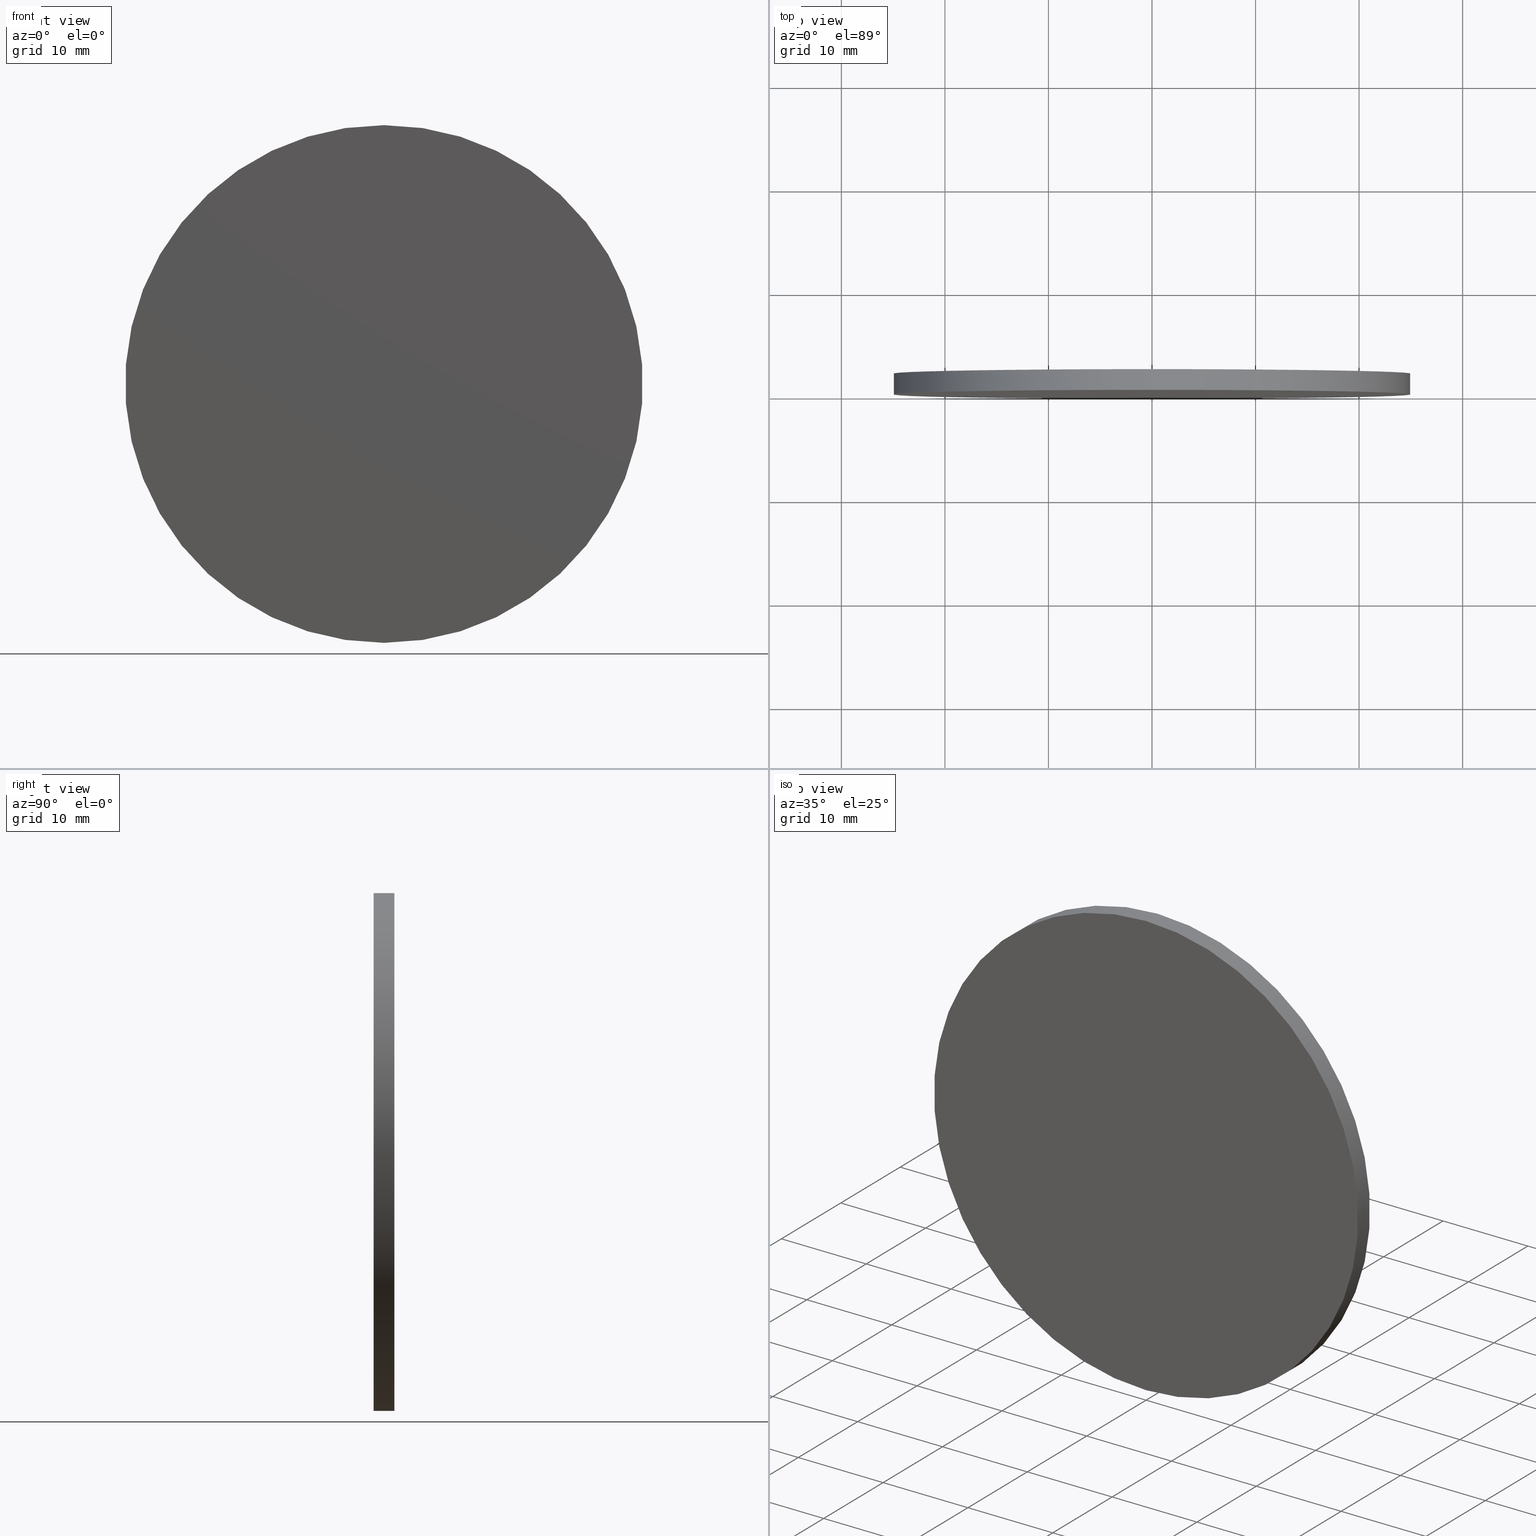
[diagram: canonical four-view strip — front | top / right | iso, engineering-drawing reading convention]
A machine part, canonical four-view strip (front | top / right | iso — engineering-drawing reading convention). The complete STEP part file that produces these views, byte-faithful:
ISO-10303-21;
HEADER;
FILE_DESCRIPTION (( 'STEP AP214' ),
    '1' );
FILE_NAME ('218617.STEP',
    '2019-07-30T05:51:13',
    ( 'user' ),
    ( '΢���й�' ),
    'SwSTEP 2.0',
    'SolidWorks 2016',
    '' );
FILE_SCHEMA (( 'AUTOMOTIVE_DESIGN' ));
ENDSEC;

DATA;
#1 = UNCERTAINTY_MEASURE_WITH_UNIT (LENGTH_MEASURE( 1.000000000000000100E-005 ), #70, 'distance_accuracy_value', 'NONE');
#2 = ORIENTED_EDGE ( 'NONE', *, *, #3, .F. ) ;
#3 = EDGE_CURVE ( 'NONE', #18, #49, #54, .T. ) ;
#4 = FILL_AREA_STYLE_COLOUR ( '', #72 ) ;
#5 = LINE ( 'NONE', #45, #126 ) ;
#6 =( NAMED_UNIT ( * ) PLANE_ANGLE_UNIT ( ) SI_UNIT ( $, .RADIAN. ) );
#7 = ORIENTED_EDGE ( 'NONE', *, *, #16, .T. ) ;
#8 = CARTESIAN_POINT ( 'NONE',  ( 0.0000000000000000000, 0.0000000000000000000, 0.0000000000000000000 ) ) ;
#9 = CARTESIAN_POINT ( 'NONE',  ( 0.0000000000000000000, 2.000000000000000000, -25.00000000000000000 ) ) ;
#10 = PLANE ( 'NONE',  #50 ) ;
#11 = MANIFOLD_SOLID_BREP ( '͹̨-����1', #112 ) ;
#12 = STYLED_ITEM ( 'NONE', ( #61 ), #39 ) ;
#13 = EDGE_LOOP ( 'NONE', ( #2, #21 ) ) ;
#14 = PRODUCT ( '218617', '218617', '', ( #121 ) ) ;
#15 =( NAMED_UNIT ( * ) SI_UNIT ( $, .STERADIAN. ) SOLID_ANGLE_UNIT ( ) );
#16 = EDGE_CURVE ( 'NONE', #60, #134, #116, .T. ) ;
#17 = CARTESIAN_POINT ( 'NONE',  ( 0.0000000000000000000, 2.000000000000000000, 0.0000000000000000000 ) ) ;
#18 = VERTEX_POINT ( 'NONE', #25 ) ;
#19 = CARTESIAN_POINT ( 'NONE',  ( 0.0000000000000000000, 2.000000000000000000, -25.00000000000000000 ) ) ;
#20 =( NAMED_UNIT ( * ) SI_UNIT ( $, .STERADIAN. ) SOLID_ANGLE_UNIT ( ) );
#21 = ORIENTED_EDGE ( 'NONE', *, *, #133, .F. ) ;
#22 =( GEOMETRIC_REPRESENTATION_CONTEXT ( 3 ) GLOBAL_UNCERTAINTY_ASSIGNED_CONTEXT ( ( #125 ) ) GLOBAL_UNIT_ASSIGNED_CONTEXT ( ( #69, #83, #15 ) ) REPRESENTATION_CONTEXT ( 'NONE', 'WORKASPACE' ) );
#23 = ORIENTED_EDGE ( 'NONE', *, *, #93, .F. ) ;
#24 = EDGE_CURVE ( 'NONE', #134, #18, #75, .T. ) ;
#25 = CARTESIAN_POINT ( 'NONE',  ( 0.0000000000000000000, 0.0000000000000000000, -25.00000000000000000 ) ) ;
#26 = AXIS2_PLACEMENT_3D ( 'NONE', #71, #55, #97 ) ;
#27 = SURFACE_STYLE_USAGE ( .BOTH. , #96 ) ;
#28 = DIRECTION ( 'NONE',  ( 0.0000000000000000000, 1.000000000000000000, 0.0000000000000000000 ) ) ;
#29 = DIRECTION ( 'NONE',  ( 0.0000000000000000000, 1.000000000000000000, 0.0000000000000000000 ) ) ;
#30 = SURFACE_STYLE_USAGE ( .BOTH. , #41 ) ;
#31 = EDGE_LOOP ( 'NONE', ( #23, #77, #33, #115 ) ) ;
#32 = FILL_AREA_STYLE ('',( #4 ) ) ;
#33 = ORIENTED_EDGE ( 'NONE', *, *, #24, .T. ) ;
#34 = FILL_AREA_STYLE ('',( #86 ) ) ;
#35 = CARTESIAN_POINT ( 'NONE',  ( 3.061616997868383000E-015, 2.000000000000000000, 25.00000000000000000 ) ) ;
#36 = CARTESIAN_POINT ( 'NONE',  ( 0.0000000000000000000, 2.000000000000000000, 0.0000000000000000000 ) ) ;
#37 = SURFACE_STYLE_FILL_AREA ( #34 ) ;
#38 = ADVANCED_FACE ( 'NONE', ( #137 ), #66, .T. ) ;
#39 = ADVANCED_BREP_SHAPE_REPRESENTATION ( '218617', ( #11, #85 ), #114 ) ;
#40 = PRODUCT_DEFINITION_SHAPE ( 'NONE', 'NONE',  #101 ) ;
#41 = SURFACE_SIDE_STYLE ('',( #67 ) ) ;
#42 = APPLICATION_CONTEXT ( 'automotive_design' ) ;
#43 = AXIS2_PLACEMENT_3D ( 'NONE', #17, #98, #47 ) ;
#44 = CIRCLE ( 'NONE', #120, 25.00000000000000000 ) ;
#45 = CARTESIAN_POINT ( 'NONE',  ( 3.061616997868383000E-015, 2.000000000000000000, 25.00000000000000000 ) ) ;
#46 = PRESENTATION_STYLE_ASSIGNMENT (( #30 ) ) ;
#47 = DIRECTION ( 'NONE',  ( 0.0000000000000000000, 0.0000000000000000000, -1.000000000000000000 ) ) ;
#48 = UNCERTAINTY_MEASURE_WITH_UNIT (LENGTH_MEASURE( 1.000000000000000100E-005 ), #94, 'distance_accuracy_value', 'NONE');
#49 = VERTEX_POINT ( 'NONE', #80 ) ;
#50 = AXIS2_PLACEMENT_3D ( 'NONE', #111, #28, #88 ) ;
#51 = ORIENTED_EDGE ( 'NONE', *, *, #93, .T. ) ;
#52 = ORIENTED_EDGE ( 'NONE', *, *, #127, .T. ) ;
#53 = DIRECTION ( 'NONE',  ( 0.0000000000000000000, 0.0000000000000000000, 1.000000000000000000 ) ) ;
#54 = CIRCLE ( 'NONE', #64, 25.00000000000000000 ) ;
#55 = DIRECTION ( 'NONE',  ( -0.0000000000000000000, -1.000000000000000000, -0.0000000000000000000 ) ) ;
#56 = FACE_OUTER_BOUND ( 'NONE', #13, .T. ) ;
#57 = DIRECTION ( 'NONE',  ( 0.0000000000000000000, -0.0000000000000000000, 1.000000000000000000 ) ) ;
#58 = CARTESIAN_POINT ( 'NONE',  ( 0.0000000000000000000, 2.000000000000000000, 0.0000000000000000000 ) ) ;
#59 = AXIS2_PLACEMENT_3D ( 'NONE', #36, #29, #90 ) ;
#60 = VERTEX_POINT ( 'NONE', #35 ) ;
#61 = PRESENTATION_STYLE_ASSIGNMENT (( #27 ) ) ;
#62 = CARTESIAN_POINT ( 'NONE',  ( 0.0000000000000000000, 2.000000000000000000, 0.0000000000000000000 ) ) ;
#63 = DIRECTION ( 'NONE',  ( 0.0000000000000000000, 0.0000000000000000000, 1.000000000000000000 ) ) ;
#64 = AXIS2_PLACEMENT_3D ( 'NONE', #81, #99, #92 ) ;
#65 = DIRECTION ( 'NONE',  ( 0.0000000000000000000, 1.000000000000000000, 0.0000000000000000000 ) ) ;
#66 = PLANE ( 'NONE',  #128 ) ;
#67 = SURFACE_STYLE_FILL_AREA ( #32 ) ;
#68 = PRODUCT_RELATED_PRODUCT_CATEGORY ( 'part', '', ( #14 ) ) ;
#69 =( LENGTH_UNIT ( ) NAMED_UNIT ( * ) SI_UNIT ( .MILLI., .METRE. ) );
#70 =( LENGTH_UNIT ( ) NAMED_UNIT ( * ) SI_UNIT ( .MILLI., .METRE. ) );
#71 = CARTESIAN_POINT ( 'NONE',  ( 0.0000000000000000000, 2.000000000000000000, 0.0000000000000000000 ) ) ;
#72 = COLOUR_RGB ( '',1.000000000000000000, 1.000000000000000000, 1.000000000000000000 ) ;
#73 = FACE_OUTER_BOUND ( 'NONE', #31, .T. ) ;
#74 = DIRECTION ( 'NONE',  ( -0.0000000000000000000, -1.000000000000000000, -0.0000000000000000000 ) ) ;
#75 = LINE ( 'NONE', #19, #129 ) ;
#76 =( GEOMETRIC_REPRESENTATION_CONTEXT ( 3 ) GLOBAL_UNCERTAINTY_ASSIGNED_CONTEXT ( ( #48 ) ) GLOBAL_UNIT_ASSIGNED_CONTEXT ( ( #94, #91, #20 ) ) REPRESENTATION_CONTEXT ( 'NONE', 'WORKASPACE' ) );
#77 = ORIENTED_EDGE ( 'NONE', *, *, #127, .F. ) ;
#78 = ADVANCED_FACE ( 'NONE', ( #56 ), #10, .F. ) ;
#79 = PRODUCT_DEFINITION_FORMATION_WITH_SPECIFIED_SOURCE ( '�κ�', '', #14, .NOT_KNOWN. ) ;
#80 = CARTESIAN_POINT ( 'NONE',  ( 3.061616997868383000E-015, 0.0000000000000000000, 25.00000000000000000 ) ) ;
#81 = CARTESIAN_POINT ( 'NONE',  ( 0.0000000000000000000, 0.0000000000000000000, 0.0000000000000000000 ) ) ;
#82 = DIRECTION ( 'NONE',  ( 0.0000000000000000000, 1.000000000000000000, 0.0000000000000000000 ) ) ;
#83 =( NAMED_UNIT ( * ) PLANE_ANGLE_UNIT ( ) SI_UNIT ( $, .RADIAN. ) );
#84 = MECHANICAL_DESIGN_GEOMETRIC_PRESENTATION_REPRESENTATION (  '', ( #109 ), #76 ) ;
#85 = AXIS2_PLACEMENT_3D ( 'NONE', #124, #63, #130 ) ;
#86 = FILL_AREA_STYLE_COLOUR ( '', #118 ) ;
#87 = CYLINDRICAL_SURFACE ( 'NONE', #26, 25.00000000000000000 ) ;
#88 = DIRECTION ( 'NONE',  ( 0.0000000000000000000, -0.0000000000000000000, 1.000000000000000000 ) ) ;
#89 = ADVANCED_FACE ( 'NONE', ( #73 ), #106, .T. ) ;
#90 = DIRECTION ( 'NONE',  ( 0.0000000000000000000, 0.0000000000000000000, 1.000000000000000000 ) ) ;
#91 =( NAMED_UNIT ( * ) PLANE_ANGLE_UNIT ( ) SI_UNIT ( $, .RADIAN. ) );
#92 = DIRECTION ( 'NONE',  ( 0.0000000000000000000, 0.0000000000000000000, 1.000000000000000000 ) ) ;
#93 = EDGE_CURVE ( 'NONE', #60, #49, #5, .T. ) ;
#94 =( LENGTH_UNIT ( ) NAMED_UNIT ( * ) SI_UNIT ( .MILLI., .METRE. ) );
#95 = AXIS2_PLACEMENT_3D ( 'NONE', #8, #65, #132 ) ;
#96 = SURFACE_SIDE_STYLE ('',( #37 ) ) ;
#97 = DIRECTION ( 'NONE',  ( 0.0000000000000000000, 0.0000000000000000000, -1.000000000000000000 ) ) ;
#98 = DIRECTION ( 'NONE',  ( -0.0000000000000000000, -1.000000000000000000, -0.0000000000000000000 ) ) ;
#99 = DIRECTION ( 'NONE',  ( 0.0000000000000000000, 1.000000000000000000, 0.0000000000000000000 ) ) ;
#100 = PRESENTATION_LAYER_ASSIGNMENT (  '', '', ( #109 ) ) ;
#101 = PRODUCT_DEFINITION ( 'δ֪', '', #79, #123 ) ;
#102 = ORIENTED_EDGE ( 'NONE', *, *, #24, .F. ) ;
#103 = PRESENTATION_LAYER_ASSIGNMENT (  '', '', ( #12 ) ) ;
#104 = ORIENTED_EDGE ( 'NONE', *, *, #133, .T. ) ;
#105 = APPLICATION_PROTOCOL_DEFINITION ( 'draft international standard', 'automotive_design', 1998, #42 ) ;
#106 = CYLINDRICAL_SURFACE ( 'NONE', #43, 25.00000000000000000 ) ;
#107 = APPLICATION_CONTEXT ( 'automotive_design' ) ;
#108 = EDGE_LOOP ( 'NONE', ( #52, #7 ) ) ;
#109 = STYLED_ITEM ( 'NONE', ( #46 ), #11 ) ;
#110 = DIRECTION ( 'NONE',  ( -0.0000000000000000000, -1.000000000000000000, -0.0000000000000000000 ) ) ;
#111 = CARTESIAN_POINT ( 'NONE',  ( 0.0000000000000000000, 0.0000000000000000000, 0.0000000000000000000 ) ) ;
#112 = CLOSED_SHELL ( 'NONE', ( #135, #89, #38, #78 ) ) ;
#113 = CIRCLE ( 'NONE', #95, 25.00000000000000000 ) ;
#114 =( GEOMETRIC_REPRESENTATION_CONTEXT ( 3 ) GLOBAL_UNCERTAINTY_ASSIGNED_CONTEXT ( ( #1 ) ) GLOBAL_UNIT_ASSIGNED_CONTEXT ( ( #70, #6, #131 ) ) REPRESENTATION_CONTEXT ( 'NONE', 'WORKASPACE' ) );
#115 = ORIENTED_EDGE ( 'NONE', *, *, #3, .T. ) ;
#116 = CIRCLE ( 'NONE', #59, 25.00000000000000000 ) ;
#117 = EDGE_LOOP ( 'NONE', ( #139, #51, #104, #102 ) ) ;
#118 = COLOUR_RGB ( '',1.000000000000000000, 1.000000000000000000, 1.000000000000000000 ) ;
#119 = FACE_OUTER_BOUND ( 'NONE', #117, .T. ) ;
#120 = AXIS2_PLACEMENT_3D ( 'NONE', #62, #82, #53 ) ;
#121 = PRODUCT_CONTEXT ( 'NONE', #107, 'mechanical' ) ;
#122 = APPLICATION_PROTOCOL_DEFINITION ( 'draft international standard', 'automotive_design', 1998, #107 ) ;
#123 = PRODUCT_DEFINITION_CONTEXT ( 'detailed design', #42, 'design' ) ;
#124 = CARTESIAN_POINT ( 'NONE',  ( 0.0000000000000000000, 0.0000000000000000000, 0.0000000000000000000 ) ) ;
#125 = UNCERTAINTY_MEASURE_WITH_UNIT (LENGTH_MEASURE( 1.000000000000000100E-005 ), #69, 'distance_accuracy_value', 'NONE');
#126 = VECTOR ( 'NONE', #110, 1000.000000000000000 ) ;
#127 = EDGE_CURVE ( 'NONE', #134, #60, #44, .T. ) ;
#128 = AXIS2_PLACEMENT_3D ( 'NONE', #58, #136, #57 ) ;
#129 = VECTOR ( 'NONE', #74, 1000.000000000000000 ) ;
#130 = DIRECTION ( 'NONE',  ( 1.000000000000000000, 0.0000000000000000000, 0.0000000000000000000 ) ) ;
#131 =( NAMED_UNIT ( * ) SI_UNIT ( $, .STERADIAN. ) SOLID_ANGLE_UNIT ( ) );
#132 = DIRECTION ( 'NONE',  ( 0.0000000000000000000, 0.0000000000000000000, 1.000000000000000000 ) ) ;
#133 = EDGE_CURVE ( 'NONE', #49, #18, #113, .T. ) ;
#134 = VERTEX_POINT ( 'NONE', #9 ) ;
#135 = ADVANCED_FACE ( 'NONE', ( #119 ), #87, .T. ) ;
#136 = DIRECTION ( 'NONE',  ( 0.0000000000000000000, 1.000000000000000000, 0.0000000000000000000 ) ) ;
#137 = FACE_OUTER_BOUND ( 'NONE', #108, .T. ) ;
#138 = MECHANICAL_DESIGN_GEOMETRIC_PRESENTATION_REPRESENTATION (  '', ( #12 ), #22 ) ;
#139 = ORIENTED_EDGE ( 'NONE', *, *, #16, .F. ) ;
#140 = SHAPE_DEFINITION_REPRESENTATION ( #40, #39 ) ;
ENDSEC;
END-ISO-10303-21;
